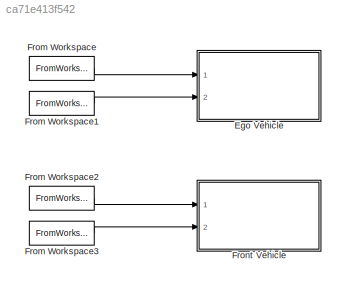
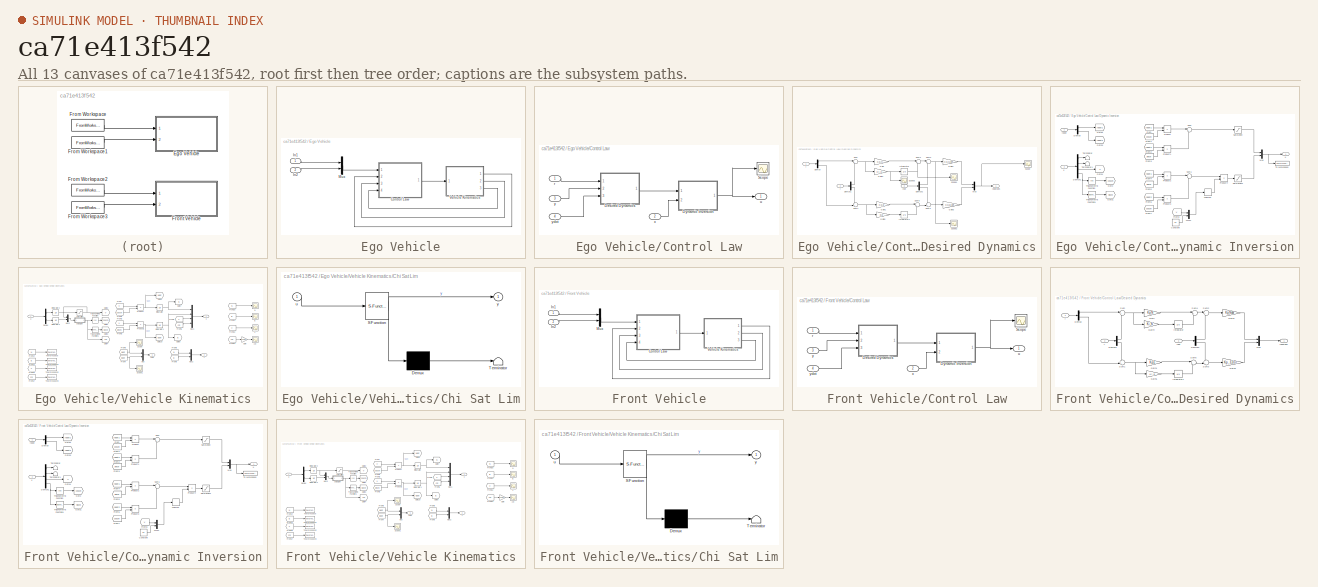
[diagram: thumbnail index - all 13 canvases of the model, root first then tree order]
MODEL slx_ca71e413f542
KIND model
CONFIG AbsTol = auto
CONFIG EnableMultiTasking = off
CONFIG FixedStep = dt
CONFIG MaxStep = auto
CONFIG MinStep = auto
CONFIG RelTol = 1e-3
CONFIG SampleTimeConstraint = Unconstrained
CONFIG Solver = ode1
CONFIG SolverName = ode1
CONFIG StartTime = t_start
CONFIG StopTime = t_stop
BLOCK [SubSystem] Ego Vehicle
  Ports = [2]
  RequestExecContextInheritance = off
BLOCK [SubSystem] Ego Vehicle/Control Law
  Ports = [4, 1]
  RequestExecContextInheritance = off
BLOCK [SubSystem] Ego Vehicle/Control Law/Desired Dynamics
  Ports = [3, 1]
  RequestExecContextInheritance = off
BLOCK [Demux] Ego Vehicle/Control Law/Desired Dynamics/Demux
  DisplayOption = bar
  Outputs = 2
  Ports = [1, 2]
BLOCK [Demux] Ego Vehicle/Control Law/Desired Dynamics/Demux1
  DisplayOption = bar
  Outputs = 2
  Ports = [1, 2]
BLOCK [Demux] Ego Vehicle/Control Law/Desired Dynamics/Demux2
  DisplayOption = bar
  Outputs = 2
  Ports = [1, 2]
BLOCK [Gain] Ego Vehicle/Control Law/Desired Dynamics/Gain
  Gain = Kp_N
  OutDataTypeStr = Inherit: Inherit via internal rule
  ParamDataTypeStr = Inherit: Inherit via internal rule
  SaturateOnIntegerOverflow = off
BLOCK [Gain] Ego Vehicle/Control Law/Desired Dynamics/Gain1
  Gain = Kp_E
  OutDataTypeStr = Inherit: Inherit via internal rule
  ParamDataTypeStr = Inherit: Inherit via internal rule
  SaturateOnIntegerOverflow = off
BLOCK [Gain] Ego Vehicle/Control Law/Desired Dynamics/Gain2
  Gain = Kp_Ndot
  OutDataTypeStr = Inherit: Inherit via internal rule
  ParamDataTypeStr = Inherit: Inherit via internal rule
  SaturateOnIntegerOverflow = off
BLOCK [Gain] Ego Vehicle/Control Law/Desired Dynamics/Gain3
  Gain = Kp_Edot
  OutDataTypeStr = Inherit: Inherit via internal rule
  ParamDataTypeStr = Inherit: Inherit via internal rule
  SaturateOnIntegerOverflow = off
BLOCK [Gain] Ego Vehicle/Control Law/Desired Dynamics/Gain4
  Gain = Ki_N
  OutDataTypeStr = Inherit: Inherit via internal rule
  ParamDataTypeStr = Inherit: Inherit via internal rule
  SaturateOnIntegerOverflow = off
BLOCK [Gain] Ego Vehicle/Control Law/Desired Dynamics/Gain5
  Gain = Ki_E
  OutDataTypeStr = Inherit: Inherit via internal rule
  ParamDataTypeStr = Inherit: Inherit via internal rule
  SaturateOnIntegerOverflow = off
BLOCK [Integrator] Ego Vehicle/Control Law/Desired Dynamics/Integrator
  InitialCondition = intg_Ki_N
  Ports = [1, 1]
BLOCK [Integrator] Ego Vehicle/Control Law/Desired Dynamics/Integrator1
  InitialCondition = intg_Ki_E
  Ports = [1, 1]
BLOCK [Mux] Ego Vehicle/Control Law/Desired Dynamics/Mux
  DisplayOption = bar
  Inputs = 2
  Ports = [2, 1]
BLOCK [Scope] Ego Vehicle/Control Law/Desired Dynamics/Scope
  Floating = off
  NumInputPorts = 1
  Ports = [1]
  ScopeSpecificationString = Simulink.scopes.TimeScopeBlockCfg('CurrentConfiguration', extmgr.ConfigurationSet(extmgr.Configuration('Core','General UI',true),extmgr.Configuration('Core','Source UI',true),extmgr.Configuration('Sources','WiredSimulink',true,'DataLoggingVariableName','ScopeData4'),extmgr.Configuration('Visuals','Time Domain',true,'SerializedDisplays',{struct('MinYLimReal','-98.72888','MaxYLimReal','10.96988','YL...<+1429ch>
BLOCK [Scope] Ego Vehicle/Control Law/Desired Dynamics/Scope1
  Floating = off
  NumInputPorts = 1
  Ports = [1]
  ScopeSpecificationString = Simulink.scopes.TimeScopeBlockCfg('CurrentConfiguration', extmgr.ConfigurationSet(extmgr.Configuration('Core','General UI',true),extmgr.Configuration('Core','Source UI',true),extmgr.Configuration('Sources','WiredSimulink',true,'DataLoggingVariableName','ScopeData5'),extmgr.Configuration('Visuals','Time Domain',true,'SerializedDisplays',{struct('MinYLimReal','44.07938','MaxYLimReal','44.10229','YLa...<+1429ch>
BLOCK [Scope] Ego Vehicle/Control Law/Desired Dynamics/Scope2
  Floating = off
  NumInputPorts = 1
  Ports = [1]
  ScopeSpecificationString = Simulink.scopes.TimeScopeBlockCfg('CurrentConfiguration', extmgr.ConfigurationSet(extmgr.Configuration('Core','General UI',true),extmgr.Configuration('Core','Source UI',true),extmgr.Configuration('Sources','WiredSimulink',true,'DataLoggingVariableName','ScopeData6'),extmgr.Configuration('Visuals','Time Domain',true,'SerializedDisplays',{struct('MinYLimReal','-44.1000000000067','MaxYLimReal','-44.0...<+1489ch>
BLOCK [Scope] Ego Vehicle/Control Law/Desired Dynamics/Scope3
  Floating = off
  NumInputPorts = 1
  Ports = [1]
  ScopeSpecificationString = Simulink.scopes.TimeScopeBlockCfg('CurrentConfiguration', extmgr.ConfigurationSet(extmgr.Configuration('Core','General UI',true),extmgr.Configuration('Core','Source UI',true),extmgr.Configuration('Sources','WiredSimulink',true,'DataLoggingVariableName','ScopeData10'),extmgr.Configuration('Visuals','Time Domain',true,'SerializedDisplays',{struct('MinYLimReal','-82.2465','MaxYLimReal','744.6285','YL...<+1423ch>
BLOCK [Sum] Ego Vehicle/Control Law/Desired Dynamics/Sum
  IconShape = round
  InputSameDT = off
  Inputs = |+-
  OutDataTypeStr = Inherit: Inherit via internal rule
  Ports = [2, 1]
  SaturateOnIntegerOverflow = off
BLOCK [Sum] Ego Vehicle/Control Law/Desired Dynamics/Sum1
  IconShape = round
  InputSameDT = off
  Inputs = -+|
  OutDataTypeStr = Inherit: Inherit via internal rule
  Ports = [2, 1]
  SaturateOnIntegerOverflow = off
BLOCK [Sum] Ego Vehicle/Control Law/Desired Dynamics/Sum2
  IconShape = round
  InputSameDT = off
  Inputs = |+-
  OutDataTypeStr = Inherit: Inherit via internal rule
  Ports = [2, 1]
  SaturateOnIntegerOverflow = off
BLOCK [Sum] Ego Vehicle/Control Law/Desired Dynamics/Sum3
  IconShape = round
  InputSameDT = off
  Inputs = -+|
  OutDataTypeStr = Inherit: Inherit via internal rule
  Ports = [2, 1]
  SaturateOnIntegerOverflow = off
BLOCK [Sum] Ego Vehicle/Control Law/Desired Dynamics/Sum4
  IconShape = round
  InputSameDT = off
  Inputs = |++
  OutDataTypeStr = Inherit: Inherit via internal rule
  Ports = [2, 1]
  SaturateOnIntegerOverflow = off
BLOCK [Sum] Ego Vehicle/Control Law/Desired Dynamics/Sum5
  IconShape = round
  InputSameDT = off
  Inputs = |++
  OutDataTypeStr = Inherit: Inherit via internal rule
  Ports = [2, 1]
  SaturateOnIntegerOverflow = off
BLOCK [Inport] Ego Vehicle/Control Law/Desired Dynamics/r
  IconDisplay = Port number
BLOCK [Inport] Ego Vehicle/Control Law/Desired Dynamics/y
  IconDisplay = Port number
  Port = 2
BLOCK [Outport] Ego Vehicle/Control Law/Desired Dynamics/yddotdes
  IconDisplay = Port number
BLOCK [Inport] Ego Vehicle/Control Law/Desired Dynamics/ydot
  IconDisplay = Port number
  Port = 3
BLOCK [SubSystem] Ego Vehicle/Control Law/Dynamic Inversion
  Ports = [2, 1]
  RequestExecContextInheritance = off
BLOCK [Constant] Ego Vehicle/Control Law/Dynamic Inversion/Constant
  Value = 0.1
BLOCK [Demux] Ego Vehicle/Control Law/Dynamic Inversion/Demux
  DisplayOption = bar
  Outputs = 2
  Ports = [1, 2]
BLOCK [Demux] Ego Vehicle/Control Law/Dynamic Inversion/Demux1
  DisplayOption = bar
  Ports = [1, 4]
BLOCK [From] Ego Vehicle/Control Law/Dynamic Inversion/From
  GotoTag = yddot1
BLOCK [From] Ego Vehicle/Control Law/Dynamic Inversion/From1
  GotoTag = coschi
BLOCK [From] Ego Vehicle/Control Law/Dynamic Inversion/From2
  GotoTag = yddot2
BLOCK [From] Ego Vehicle/Control Law/Dynamic Inversion/From3
  GotoTag = sinchi
BLOCK [From] Ego Vehicle/Control Law/Dynamic Inversion/From4
  GotoTag = yddot1
BLOCK [From] Ego Vehicle/Control Law/Dynamic Inversion/From5
  GotoTag = sinchi
BLOCK [From] Ego Vehicle/Control Law/Dynamic Inversion/From6
  GotoTag = yddot2
BLOCK [From] Ego Vehicle/Control Law/Dynamic Inversion/From7
  GotoTag = coschi
BLOCK [From] Ego Vehicle/Control Law/Dynamic Inversion/From8
  GotoTag = V
BLOCK [Goto] Ego Vehicle/Control Law/Dynamic Inversion/Goto
  GotoTag = coschi
BLOCK [Goto] Ego Vehicle/Control Law/Dynamic Inversion/Goto1
  GotoTag = sinchi
BLOCK [Goto] Ego Vehicle/Control Law/Dynamic Inversion/Goto2
  GotoTag = yddot1
BLOCK [Goto] Ego Vehicle/Control Law/Dynamic Inversion/Goto3
  GotoTag = yddot2
BLOCK [Goto] Ego Vehicle/Control Law/Dynamic Inversion/Goto4
  GotoTag = V
BLOCK [MinMax] Ego Vehicle/Control Law/Dynamic Inversion/MinMax
  Function = max
  InputSameDT = off
  Ports = [1, 1]
  SaturateOnIntegerOverflow = off
BLOCK [Mux] Ego Vehicle/Control Law/Dynamic Inversion/Mux
  DisplayOption = bar
  Inputs = 2
  Ports = [2, 1]
BLOCK [Mux] Ego Vehicle/Control Law/Dynamic Inversion/Mux1
  DisplayOption = bar
  Inputs = 2
  Ports = [2, 1]
BLOCK [Product] Ego Vehicle/Control Law/Dynamic Inversion/Product
  InputSameDT = off
  OutDataTypeStr = Inherit: Inherit via internal rule
  Ports = [2, 1]
  RndMeth = Floor
  SaturateOnIntegerOverflow = off
BLOCK [Product] Ego Vehicle/Control Law/Dynamic Inversion/Product1
  InputSameDT = off
  OutDataTypeStr = Inherit: Inherit via internal rule
  Ports = [2, 1]
  RndMeth = Floor
  SaturateOnIntegerOverflow = off
BLOCK [Product] Ego Vehicle/Control Law/Dynamic Inversion/Product2
  InputSameDT = off
  OutDataTypeStr = Inherit: Inherit via internal rule
  Ports = [2, 1]
  RndMeth = Floor
  SaturateOnIntegerOverflow = off
BLOCK [Product] Ego Vehicle/Control Law/Dynamic Inversion/Product3
  InputSameDT = off
  OutDataTypeStr = Inherit: Inherit via internal rule
  Ports = [2, 1]
  RndMeth = Floor
  SaturateOnIntegerOverflow = off
BLOCK [Product] Ego Vehicle/Control Law/Dynamic Inversion/Product4
  InputSameDT = off
  Inputs = */
  OutDataTypeStr = Inherit: Inherit via internal rule
  Ports = [2, 1]
  RndMeth = Floor
  SaturateOnIntegerOverflow = off
BLOCK [Saturate] Ego Vehicle/Control Law/Dynamic Inversion/Saturation
  InputPortMap = u0
  LowerLimit = Vdot_min
  Ports = [1, 1]
  UpperLimit = Vdot_max
BLOCK [Saturate] Ego Vehicle/Control Law/Dynamic Inversion/Saturation1
  InputPortMap = u0
  LowerLimit = chidot_min
  Ports = [1, 1]
  UpperLimit = chidot_max
BLOCK [Sum] Ego Vehicle/Control Law/Dynamic Inversion/Sum
  IconShape = round
  InputSameDT = off
  Inputs = |++
  OutDataTypeStr = Inherit: Inherit via internal rule
  Ports = [2, 1]
  SaturateOnIntegerOverflow = off
BLOCK [Sum] Ego Vehicle/Control Law/Dynamic Inversion/Sum1
  IconShape = round
  InputSameDT = off
  Inputs = |-+
  OutDataTypeStr = Inherit: Inherit via internal rule
  Ports = [2, 1]
  SaturateOnIntegerOverflow = off
BLOCK [Terminator] Ego Vehicle/Control Law/Dynamic Inversion/Terminator
BLOCK [Terminator] Ego Vehicle/Control Law/Dynamic Inversion/Terminator1
BLOCK [ToWorkspace] Ego Vehicle/Control Law/Dynamic Inversion/To Workspace
  FixptAsFi = on
  MaxDataPoints = inf
  Ports = [1]
  SampleTime = -1
  Save2DSignal = 3-D array (concatenate along third dimension)
  VariableName = u_sim
BLOCK [Trigonometry] Ego Vehicle/Control Law/Dynamic Inversion/Trigonometric Function
  Operator = cos
  Ports = [1, 1]
BLOCK [Trigonometry] Ego Vehicle/Control Law/Dynamic Inversion/Trigonometric Function1
  Ports = [1, 1]
BLOCK [Outport] Ego Vehicle/Control Law/Dynamic Inversion/u
  IconDisplay = Port number
BLOCK [Inport] Ego Vehicle/Control Law/Dynamic Inversion/x
  IconDisplay = Port number
  Port = 2
BLOCK [Inport] Ego Vehicle/Control Law/Dynamic Inversion/yddot
  IconDisplay = Port number
BLOCK [Scope] Ego Vehicle/Control Law/Scope
  Floating = off
  NumInputPorts = 1
  Ports = [1]
  ScopeSpecificationString = Simulink.scopes.TimeScopeBlockCfg('CurrentConfiguration', extmgr.ConfigurationSet(extmgr.Configuration('Core','General UI',true),extmgr.Configuration('Core','Source UI',true),extmgr.Configuration('Sources','WiredSimulink',true,'DataLoggingVariableName','ScopeData9'),extmgr.Configuration('Visuals','Time Domain',true,'SerializedDisplays',{struct('MinYLimReal','-13.96941','MaxYLimReal','6.2335','YLab...<+1402ch>
BLOCK [Inport] Ego Vehicle/Control Law/r
  IconDisplay = Port number
BLOCK [Outport] Ego Vehicle/Control Law/u
  IconDisplay = Port number
BLOCK [Inport] Ego Vehicle/Control Law/x
  IconDisplay = Port number
  Port = 2
BLOCK [Inport] Ego Vehicle/Control Law/y
  IconDisplay = Port number
  Port = 3
BLOCK [Inport] Ego Vehicle/Control Law/ydot
  IconDisplay = Port number
  Port = 4
BLOCK [Inport] Ego Vehicle/In1
  IconDisplay = Port number
BLOCK [Inport] Ego Vehicle/In2
  IconDisplay = Port number
  Port = 2
BLOCK [Mux] Ego Vehicle/Mux
  DisplayOption = bar
  Inputs = 2
  Ports = [2, 1]
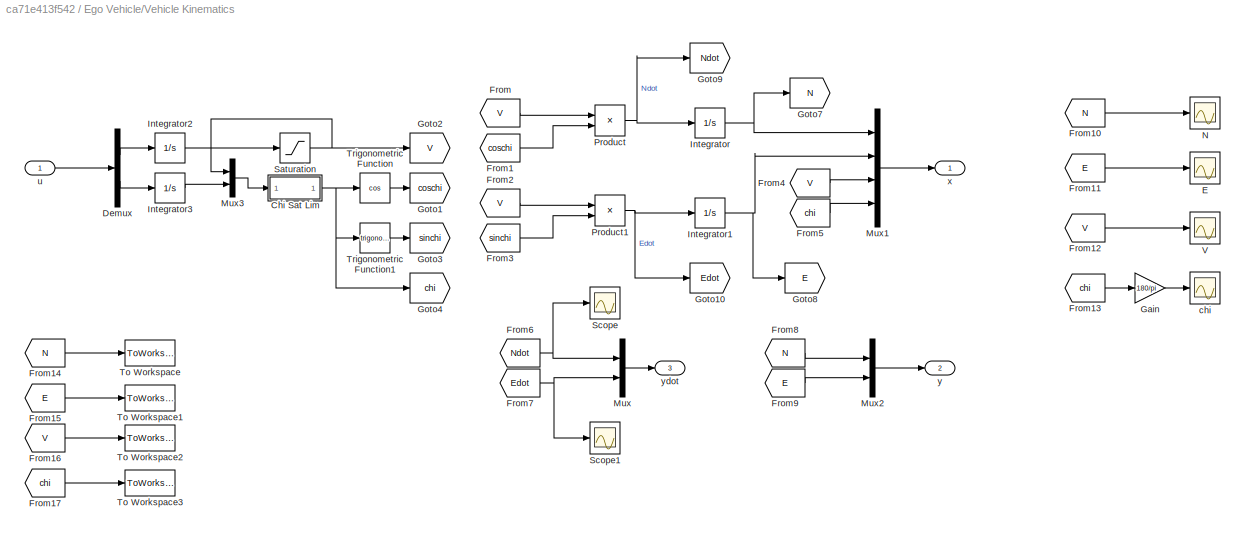
BLOCK [SubSystem] Ego Vehicle/Vehicle Kinematics
  Ports = [1, 3]
  RequestExecContextInheritance = off
BLOCK [SubSystem] Ego Vehicle/Vehicle Kinematics/Chi Sat Lim
  ErrorFcn = Stateflow.Translate.translate
  PermitHierarchicalResolution = ExplicitOnly
  Ports = [1, 1]
  RequestExecContextInheritance = off
  SFBlockType = MATLAB Function
  TreatAsAtomicUnit = on
BLOCK [Demux] Ego Vehicle/Vehicle Kinematics/Chi Sat Lim/ Demux 
  Outputs = 1
  Ports = [1, 1]
BLOCK [S-Function] Ego Vehicle/Vehicle Kinematics/Chi Sat Lim/ SFunction 
  EnableBusSupport = on
  FunctionName = sf_sfun
  PortCounts = [1 2]
  Ports = [1, 2]
  SFcnIsStateOwnerBlock = off
  SFunctionDeploymentMode = off
  Tag = Stateflow S-Function nonlinsim 2
BLOCK [Terminator] Ego Vehicle/Vehicle Kinematics/Chi Sat Lim/ Terminator 
BLOCK [Inport] Ego Vehicle/Vehicle Kinematics/Chi Sat Lim/u
  IconDisplay = Port number
BLOCK [Outport] Ego Vehicle/Vehicle Kinematics/Chi Sat Lim/y
  IconDisplay = Port number
BLOCK [Demux] Ego Vehicle/Vehicle Kinematics/Demux
  DisplayOption = bar
  Outputs = 2
  Ports = [1, 2]
BLOCK [Scope] Ego Vehicle/Vehicle Kinematics/E
  Floating = off
  NumInputPorts = 1
  Ports = [1]
  ScopeSpecificationString = Simulink.scopes.TimeScopeBlockCfg('CurrentConfiguration', extmgr.ConfigurationSet(extmgr.Configuration('Core','General UI',true),extmgr.Configuration('Core','Source UI',true),extmgr.Configuration('Sources','WiredSimulink',true,'DataLoggingVariableName','ScopeData1'),extmgr.Configuration('Visuals','Time Domain',true,'SerializedDisplays',{struct('MinYLimReal','-3.05329','MaxYLimReal','27.47965','YLa...<+1406ch>
BLOCK [From] Ego Vehicle/Vehicle Kinematics/From
  GotoTag = V
BLOCK [From] Ego Vehicle/Vehicle Kinematics/From1
  GotoTag = coschi
BLOCK [From] Ego Vehicle/Vehicle Kinematics/From10
  GotoTag = N
BLOCK [From] Ego Vehicle/Vehicle Kinematics/From11
  GotoTag = E
BLOCK [From] Ego Vehicle/Vehicle Kinematics/From12
  GotoTag = V
BLOCK [From] Ego Vehicle/Vehicle Kinematics/From13
  GotoTag = chi
BLOCK [From] Ego Vehicle/Vehicle Kinematics/From14
  GotoTag = N
BLOCK [From] Ego Vehicle/Vehicle Kinematics/From15
  GotoTag = E
BLOCK [From] Ego Vehicle/Vehicle Kinematics/From16
  GotoTag = V
BLOCK [From] Ego Vehicle/Vehicle Kinematics/From17
  GotoTag = chi
BLOCK [From] Ego Vehicle/Vehicle Kinematics/From2
  GotoTag = V
BLOCK [From] Ego Vehicle/Vehicle Kinematics/From3
  GotoTag = sinchi
BLOCK [From] Ego Vehicle/Vehicle Kinematics/From4
  GotoTag = V
BLOCK [From] Ego Vehicle/Vehicle Kinematics/From5
  GotoTag = chi
BLOCK [From] Ego Vehicle/Vehicle Kinematics/From6
  GotoTag = Ndot
BLOCK [From] Ego Vehicle/Vehicle Kinematics/From7
  GotoTag = Edot
BLOCK [From] Ego Vehicle/Vehicle Kinematics/From8
  GotoTag = N
BLOCK [From] Ego Vehicle/Vehicle Kinematics/From9
  GotoTag = E
BLOCK [Gain] Ego Vehicle/Vehicle Kinematics/Gain
  Gain = 180/pi
  OutDataTypeStr = Inherit: Inherit via internal rule
  ParamDataTypeStr = Inherit: Inherit via internal rule
  SaturateOnIntegerOverflow = off
BLOCK [Goto] Ego Vehicle/Vehicle Kinematics/Goto1
  GotoTag = coschi
BLOCK [Goto] Ego Vehicle/Vehicle Kinematics/Goto10
  GotoTag = Edot
BLOCK [Goto] Ego Vehicle/Vehicle Kinematics/Goto2
  GotoTag = V
BLOCK [Goto] Ego Vehicle/Vehicle Kinematics/Goto3
  GotoTag = sinchi
BLOCK [Goto] Ego Vehicle/Vehicle Kinematics/Goto4
  GotoTag = chi
BLOCK [Goto] Ego Vehicle/Vehicle Kinematics/Goto7
  GotoTag = N
BLOCK [Goto] Ego Vehicle/Vehicle Kinematics/Goto8
  GotoTag = E
BLOCK [Goto] Ego Vehicle/Vehicle Kinematics/Goto9
  GotoTag = Ndot
BLOCK [Integrator] Ego Vehicle/Vehicle Kinematics/Integrator
  InitialCondition = N0
  Ports = [1, 1]
BLOCK [Integrator] Ego Vehicle/Vehicle Kinematics/Integrator1
  InitialCondition = E0
  Ports = [1, 1]
BLOCK [Integrator] Ego Vehicle/Vehicle Kinematics/Integrator2
  InitialCondition = V0
  Ports = [1, 1]
BLOCK [Integrator] Ego Vehicle/Vehicle Kinematics/Integrator3
  InitialCondition = chi0
  Ports = [1, 1]
BLOCK [Mux] Ego Vehicle/Vehicle Kinematics/Mux
  DisplayOption = bar
  Inputs = 2
  Ports = [2, 1]
BLOCK [Mux] Ego Vehicle/Vehicle Kinematics/Mux1
  DisplayOption = bar
  Ports = [4, 1]
BLOCK [Mux] Ego Vehicle/Vehicle Kinematics/Mux2
  DisplayOption = bar
  Inputs = 2
  Ports = [2, 1]
BLOCK [Mux] Ego Vehicle/Vehicle Kinematics/Mux3
  DisplayOption = bar
  Inputs = 2
  Ports = [2, 1]
BLOCK [Scope] Ego Vehicle/Vehicle Kinematics/N
  Floating = off
  NumInputPorts = 1
  Ports = [1]
  ScopeSpecificationString = Simulink.scopes.TimeScopeBlockCfg('CurrentConfiguration', extmgr.ConfigurationSet(extmgr.Configuration('Core','General UI',true),extmgr.Configuration('Core','Source UI',true),extmgr.Configuration('Sources','WiredSimulink',true),extmgr.Configuration('Visuals','Time Domain',true,'SerializedDisplays',{struct('MinYLimReal','-77.04857','MaxYLimReal','693.43714','YLabelReal','','MinYLimMag','0.00000','M...<+1394ch>
BLOCK [Product] Ego Vehicle/Vehicle Kinematics/Product
  InputSameDT = off
  OutDataTypeStr = Inherit: Inherit via internal rule
  Ports = [2, 1]
  RndMeth = Floor
  SaturateOnIntegerOverflow = off
BLOCK [Product] Ego Vehicle/Vehicle Kinematics/Product1
  InputSameDT = off
  OutDataTypeStr = Inherit: Inherit via internal rule
  Ports = [2, 1]
  RndMeth = Floor
  SaturateOnIntegerOverflow = off
BLOCK [Saturate] Ego Vehicle/Vehicle Kinematics/Saturation
  InputPortMap = u0
  LowerLimit = V_min
  Ports = [1, 1]
  UpperLimit = V_max
BLOCK [Scope] Ego Vehicle/Vehicle Kinematics/Scope
  Floating = off
  NumInputPorts = 1
  Ports = [1]
  ScopeSpecificationString = Simulink.scopes.TimeScopeBlockCfg('CurrentConfiguration', extmgr.ConfigurationSet(extmgr.Configuration('Core','General UI',true),extmgr.Configuration('Core','Source UI',true),extmgr.Configuration('Sources','WiredSimulink',true,'DataLoggingVariableName','ScopeData7'),extmgr.Configuration('Visuals','Time Domain',true,'SerializedDisplays',{struct('MinYLimReal','34.1','MaxYLimReal','54.1','YLabelReal'...<+1358ch>
BLOCK [Scope] Ego Vehicle/Vehicle Kinematics/Scope1
  Floating = off
  NumInputPorts = 1
  Ports = [1]
  ScopeSpecificationString = Simulink.scopes.TimeScopeBlockCfg('CurrentConfiguration', extmgr.ConfigurationSet(extmgr.Configuration('Core','General UI',true),extmgr.Configuration('Core','Source UI',true),extmgr.Configuration('Sources','WiredSimulink',true,'DataLoggingVariableName','ScopeData8'),extmgr.Configuration('Visuals','Time Domain',true,'SerializedDisplays',{struct('MinYLimReal','-2.33788','MaxYLimReal','18.13728','YLa...<+1369ch>
BLOCK [ToWorkspace] Ego Vehicle/Vehicle Kinematics/To Workspace
  FixptAsFi = on
  MaxDataPoints = inf
  Ports = [1]
  SampleTime = -1
  Save2DSignal = 3-D array (concatenate along third dimension)
  VariableName = N_sim
BLOCK [ToWorkspace] Ego Vehicle/Vehicle Kinematics/To Workspace1
  FixptAsFi = on
  MaxDataPoints = inf
  Ports = [1]
  SampleTime = -1
  Save2DSignal = 3-D array (concatenate along third dimension)
  VariableName = E_sim
BLOCK [ToWorkspace] Ego Vehicle/Vehicle Kinematics/To Workspace2
  FixptAsFi = on
  MaxDataPoints = inf
  Ports = [1]
  SampleTime = -1
  Save2DSignal = 3-D array (concatenate along third dimension)
  VariableName = V_sim
BLOCK [ToWorkspace] Ego Vehicle/Vehicle Kinematics/To Workspace3
  FixptAsFi = on
  MaxDataPoints = inf
  Ports = [1]
  SampleTime = -1
  Save2DSignal = 3-D array (concatenate along third dimension)
  VariableName = chi_sim
BLOCK [Trigonometry] Ego Vehicle/Vehicle Kinematics/Trigonometric Function
  Operator = cos
  Ports = [1, 1]
BLOCK [Trigonometry] Ego Vehicle/Vehicle Kinematics/Trigonometric Function1
  Ports = [1, 1]
BLOCK [Scope] Ego Vehicle/Vehicle Kinematics/V
  Floating = off
  NumInputPorts = 1
  Ports = [1]
  ScopeSpecificationString = Simulink.scopes.TimeScopeBlockCfg('CurrentConfiguration', extmgr.ConfigurationSet(extmgr.Configuration('Core','General UI',true),extmgr.Configuration('Core','Source UI',true),extmgr.Configuration('Sources','WiredSimulink',true,'DataLoggingVariableName','ScopeData2'),extmgr.Configuration('Visuals','Time Domain',true,'SerializedDisplays',{struct('MinYLimReal','-7.92362','MaxYLimReal','68.20358','YLa...<+1450ch>
BLOCK [Scope] Ego Vehicle/Vehicle Kinematics/chi
  Floating = off
  NumInputPorts = 1
  Ports = [1]
  ScopeSpecificationString = Simulink.scopes.TimeScopeBlockCfg('CurrentConfiguration', extmgr.ConfigurationSet(extmgr.Configuration('Core','General UI',true),extmgr.Configuration('Core','Source UI',true),extmgr.Configuration('Sources','WiredSimulink',true,'DataLoggingVariableName','ScopeData3'),extmgr.Configuration('Visuals','Time Domain',true,'SerializedDisplays',{struct('MinYLimReal','-2.24322','MaxYLimReal','17.36005','YLa...<+1429ch>
BLOCK [Inport] Ego Vehicle/Vehicle Kinematics/u
  IconDisplay = Port number
BLOCK [Outport] Ego Vehicle/Vehicle Kinematics/x
  IconDisplay = Port number
BLOCK [Outport] Ego Vehicle/Vehicle Kinematics/y
  IconDisplay = Port number
  Port = 2
BLOCK [Outport] Ego Vehicle/Vehicle Kinematics/ydot
  IconDisplay = Port number
  Port = 3
BLOCK [FromWorkspace] From Workspace
  SampleTime = 0
  VariableName = [tvec Nc]
  ZeroCross = on
BLOCK [FromWorkspace] From Workspace1
  SampleTime = 0
  VariableName = [tvec Ec]
  ZeroCross = on
BLOCK [FromWorkspace] From Workspace2
  SampleTime = 0
  VariableName = [tvec Nc1]
  ZeroCross = on
BLOCK [FromWorkspace] From Workspace3
  SampleTime = 0
  VariableName = [tvec Ec1]
  ZeroCross = on
BLOCK [SubSystem] Front Vehicle
  Ports = [2]
  RequestExecContextInheritance = off
BLOCK [SubSystem] Front Vehicle/Control Law
  Ports = [4, 1]
  RequestExecContextInheritance = off
BLOCK [SubSystem] Front Vehicle/Control Law/Desired Dynamics
  Ports = [3, 1]
  RequestExecContextInheritance = off
BLOCK [Demux] Front Vehicle/Control Law/Desired Dynamics/Demux
  DisplayOption = bar
  Outputs = 2
  Ports = [1, 2]
BLOCK [Demux] Front Vehicle/Control Law/Desired Dynamics/Demux1
  DisplayOption = bar
  Outputs = 2
  Ports = [1, 2]
BLOCK [Demux] Front Vehicle/Control Law/Desired Dynamics/Demux2
  DisplayOption = bar
  Outputs = 2
  Ports = [1, 2]
BLOCK [Gain] Front Vehicle/Control Law/Desired Dynamics/Gain
  Gain = Kp_N
  OutDataTypeStr = Inherit: Inherit via internal rule
  ParamDataTypeStr = Inherit: Inherit via internal rule
  SaturateOnIntegerOverflow = off
BLOCK [Gain] Front Vehicle/Control Law/Desired Dynamics/Gain1
  Gain = Kp_E
  OutDataTypeStr = Inherit: Inherit via internal rule
  ParamDataTypeStr = Inherit: Inherit via internal rule
  SaturateOnIntegerOverflow = off
BLOCK [Gain] Front Vehicle/Control Law/Desired Dynamics/Gain2
  Gain = Kp_Ndot
  OutDataTypeStr = Inherit: Inherit via internal rule
  ParamDataTypeStr = Inherit: Inherit via internal rule
  SaturateOnIntegerOverflow = off
BLOCK [Gain] Front Vehicle/Control Law/Desired Dynamics/Gain3
  Gain = Kp_Edot
  OutDataTypeStr = Inherit: Inherit via internal rule
  ParamDataTypeStr = Inherit: Inherit via internal rule
  SaturateOnIntegerOverflow = off
BLOCK [Gain] Front Vehicle/Control Law/Desired Dynamics/Gain4
  Gain = Ki_N
  OutDataTypeStr = Inherit: Inherit via internal rule
  ParamDataTypeStr = Inherit: Inherit via internal rule
  SaturateOnIntegerOverflow = off
BLOCK [Gain] Front Vehicle/Control Law/Desired Dynamics/Gain5
  Gain = Ki_E
  OutDataTypeStr = Inherit: Inherit via internal rule
  ParamDataTypeStr = Inherit: Inherit via internal rule
  SaturateOnIntegerOverflow = off
BLOCK [Integrator] Front Vehicle/Control Law/Desired Dynamics/Integrator
  InitialCondition = intg_Ki_N1
  Ports = [1, 1]
BLOCK [Integrator] Front Vehicle/Control Law/Desired Dynamics/Integrator1
  InitialCondition = intg_Ki_E1
  Ports = [1, 1]
BLOCK [Mux] Front Vehicle/Control Law/Desired Dynamics/Mux
  DisplayOption = bar
  Inputs = 2
  Ports = [2, 1]
BLOCK [Sum] Front Vehicle/Control Law/Desired Dynamics/Sum
  IconShape = round
  InputSameDT = off
  Inputs = |+-
  OutDataTypeStr = Inherit: Inherit via internal rule
  Ports = [2, 1]
  SaturateOnIntegerOverflow = off
BLOCK [Sum] Front Vehicle/Control Law/Desired Dynamics/Sum1
  IconShape = round
  InputSameDT = off
  Inputs = -+|
  OutDataTypeStr = Inherit: Inherit via internal rule
  Ports = [2, 1]
  SaturateOnIntegerOverflow = off
BLOCK [Sum] Front Vehicle/Control Law/Desired Dynamics/Sum2
  IconShape = round
  InputSameDT = off
  Inputs = |+-
  OutDataTypeStr = Inherit: Inherit via internal rule
  Ports = [2, 1]
  SaturateOnIntegerOverflow = off
BLOCK [Sum] Front Vehicle/Control Law/Desired Dynamics/Sum3
  IconShape = round
  InputSameDT = off
  Inputs = -+|
  OutDataTypeStr = Inherit: Inherit via internal rule
  Ports = [2, 1]
  SaturateOnIntegerOverflow = off
BLOCK [Sum] Front Vehicle/Control Law/Desired Dynamics/Sum4
  IconShape = round
  InputSameDT = off
  Inputs = |++
  OutDataTypeStr = Inherit: Inherit via internal rule
  Ports = [2, 1]
  SaturateOnIntegerOverflow = off
BLOCK [Sum] Front Vehicle/Control Law/Desired Dynamics/Sum5
  IconShape = round
  InputSameDT = off
  Inputs = |++
  OutDataTypeStr = Inherit: Inherit via internal rule
  Ports = [2, 1]
  SaturateOnIntegerOverflow = off
BLOCK [Inport] Front Vehicle/Control Law/Desired Dynamics/r
  IconDisplay = Port number
BLOCK [Inport] Front Vehicle/Control Law/Desired Dynamics/y
  IconDisplay = Port number
  Port = 2
BLOCK [Outport] Front Vehicle/Control Law/Desired Dynamics/yddotdes
  IconDisplay = Port number
BLOCK [Inport] Front Vehicle/Control Law/Desired Dynamics/ydot
  IconDisplay = Port number
  Port = 3
BLOCK [SubSystem] Front Vehicle/Control Law/Dynamic Inversion
  Ports = [2, 1]
  RequestExecContextInheritance = off
BLOCK [Constant] Front Vehicle/Control Law/Dynamic Inversion/Constant
  Value = 0.1
BLOCK [Demux] Front Vehicle/Control Law/Dynamic Inversion/Demux
  DisplayOption = bar
  Outputs = 2
  Ports = [1, 2]
BLOCK [Demux] Front Vehicle/Control Law/Dynamic Inversion/Demux1
  DisplayOption = bar
  Ports = [1, 4]
BLOCK [From] Front Vehicle/Control Law/Dynamic Inversion/From
  GotoTag = yddot1
BLOCK [From] Front Vehicle/Control Law/Dynamic Inversion/From1
  GotoTag = coschi
BLOCK [From] Front Vehicle/Control Law/Dynamic Inversion/From2
  GotoTag = yddot2
BLOCK [From] Front Vehicle/Control Law/Dynamic Inversion/From3
  GotoTag = sinchi
BLOCK [From] Front Vehicle/Control Law/Dynamic Inversion/From4
  GotoTag = yddot1
BLOCK [From] Front Vehicle/Control Law/Dynamic Inversion/From5
  GotoTag = sinchi
BLOCK [From] Front Vehicle/Control Law/Dynamic Inversion/From6
  GotoTag = yddot2
BLOCK [From] Front Vehicle/Control Law/Dynamic Inversion/From7
  GotoTag = coschi
BLOCK [From] Front Vehicle/Control Law/Dynamic Inversion/From8
  GotoTag = V
BLOCK [Goto] Front Vehicle/Control Law/Dynamic Inversion/Goto
  GotoTag = coschi
BLOCK [Goto] Front Vehicle/Control Law/Dynamic Inversion/Goto1
  GotoTag = sinchi
BLOCK [Goto] Front Vehicle/Control Law/Dynamic Inversion/Goto2
  GotoTag = yddot1
BLOCK [Goto] Front Vehicle/Control Law/Dynamic Inversion/Goto3
  GotoTag = yddot2
BLOCK [Goto] Front Vehicle/Control Law/Dynamic Inversion/Goto4
  GotoTag = V
BLOCK [MinMax] Front Vehicle/Control Law/Dynamic Inversion/MinMax
  Function = max
  InputSameDT = off
  Ports = [1, 1]
  SaturateOnIntegerOverflow = off
BLOCK [Mux] Front Vehicle/Control Law/Dynamic Inversion/Mux
  DisplayOption = bar
  Inputs = 2
  Ports = [2, 1]
BLOCK [Mux] Front Vehicle/Control Law/Dynamic Inversion/Mux1
  DisplayOption = bar
  Inputs = 2
  Ports = [2, 1]
BLOCK [Product] Front Vehicle/Control Law/Dynamic Inversion/Product
  InputSameDT = off
  OutDataTypeStr = Inherit: Inherit via internal rule
  Ports = [2, 1]
  RndMeth = Floor
  SaturateOnIntegerOverflow = off
BLOCK [Product] Front Vehicle/Control Law/Dynamic Inversion/Product1
  InputSameDT = off
  OutDataTypeStr = Inherit: Inherit via internal rule
  Ports = [2, 1]
  RndMeth = Floor
  SaturateOnIntegerOverflow = off
BLOCK [Product] Front Vehicle/Control Law/Dynamic Inversion/Product2
  InputSameDT = off
  OutDataTypeStr = Inherit: Inherit via internal rule
  Ports = [2, 1]
  RndMeth = Floor
  SaturateOnIntegerOverflow = off
BLOCK [Product] Front Vehicle/Control Law/Dynamic Inversion/Product3
  InputSameDT = off
  OutDataTypeStr = Inherit: Inherit via internal rule
  Ports = [2, 1]
  RndMeth = Floor
  SaturateOnIntegerOverflow = off
BLOCK [Product] Front Vehicle/Control Law/Dynamic Inversion/Product4
  InputSameDT = off
  Inputs = */
  OutDataTypeStr = Inherit: Inherit via internal rule
  Ports = [2, 1]
  RndMeth = Floor
  SaturateOnIntegerOverflow = off
BLOCK [Saturate] Front Vehicle/Control Law/Dynamic Inversion/Saturation
  InputPortMap = u0
  LowerLimit = Vdot_min
  Ports = [1, 1]
  UpperLimit = Vdot_max
BLOCK [Saturate] Front Vehicle/Control Law/Dynamic Inversion/Saturation1
  InputPortMap = u0
  LowerLimit = chidot_min
  Ports = [1, 1]
  UpperLimit = chidot_max
BLOCK [Sum] Front Vehicle/Control Law/Dynamic Inversion/Sum
  IconShape = round
  InputSameDT = off
  Inputs = |++
  OutDataTypeStr = Inherit: Inherit via internal rule
  Ports = [2, 1]
  SaturateOnIntegerOverflow = off
BLOCK [Sum] Front Vehicle/Control Law/Dynamic Inversion/Sum1
  IconShape = round
  InputSameDT = off
  Inputs = |-+
  OutDataTypeStr = Inherit: Inherit via internal rule
  Ports = [2, 1]
  SaturateOnIntegerOverflow = off
BLOCK [Terminator] Front Vehicle/Control Law/Dynamic Inversion/Terminator
BLOCK [Terminator] Front Vehicle/Control Law/Dynamic Inversion/Terminator1
BLOCK [ToWorkspace] Front Vehicle/Control Law/Dynamic Inversion/To Workspace
  FixptAsFi = on
  MaxDataPoints = inf
  Ports = [1]
  SampleTime = -1
  Save2DSignal = 3-D array (concatenate along third dimension)
  VariableName = u1_sim
BLOCK [Trigonometry] Front Vehicle/Control Law/Dynamic Inversion/Trigonometric Function
  Operator = cos
  Ports = [1, 1]
BLOCK [Trigonometry] Front Vehicle/Control Law/Dynamic Inversion/Trigonometric Function1
  Ports = [1, 1]
BLOCK [Outport] Front Vehicle/Control Law/Dynamic Inversion/u
  IconDisplay = Port number
BLOCK [Inport] Front Vehicle/Control Law/Dynamic Inversion/x
  IconDisplay = Port number
  Port = 2
BLOCK [Inport] Front Vehicle/Control Law/Dynamic Inversion/yddot
  IconDisplay = Port number
BLOCK [Scope] Front Vehicle/Control Law/Scope
  Floating = off
  NumInputPorts = 1
  Ports = [1]
  ScopeSpecificationString = Simulink.scopes.TimeScopeBlockCfg('CurrentConfiguration', extmgr.ConfigurationSet(extmgr.Configuration('Core','General UI',true),extmgr.Configuration('Core','Source UI',true),extmgr.Configuration('Sources','WiredSimulink',true,'DataLoggingVariableName','ScopeData9'),extmgr.Configuration('Visuals','Time Domain',true,'SerializedDisplays',{struct('MinYLimReal','-3.73339','MaxYLimReal','5.91244','YLab...<+1400ch>
BLOCK [Inport] Front Vehicle/Control Law/r
  IconDisplay = Port number
BLOCK [Outport] Front Vehicle/Control Law/u
  IconDisplay = Port number
BLOCK [Inport] Front Vehicle/Control Law/x
  IconDisplay = Port number
  Port = 2
BLOCK [Inport] Front Vehicle/Control Law/y
  IconDisplay = Port number
  Port = 3
BLOCK [Inport] Front Vehicle/Control Law/ydot
  IconDisplay = Port number
  Port = 4
BLOCK [Inport] Front Vehicle/In1
  IconDisplay = Port number
BLOCK [Inport] Front Vehicle/In2
  IconDisplay = Port number
  Port = 2
BLOCK [Mux] Front Vehicle/Mux
  DisplayOption = bar
  Inputs = 2
  Ports = [2, 1]
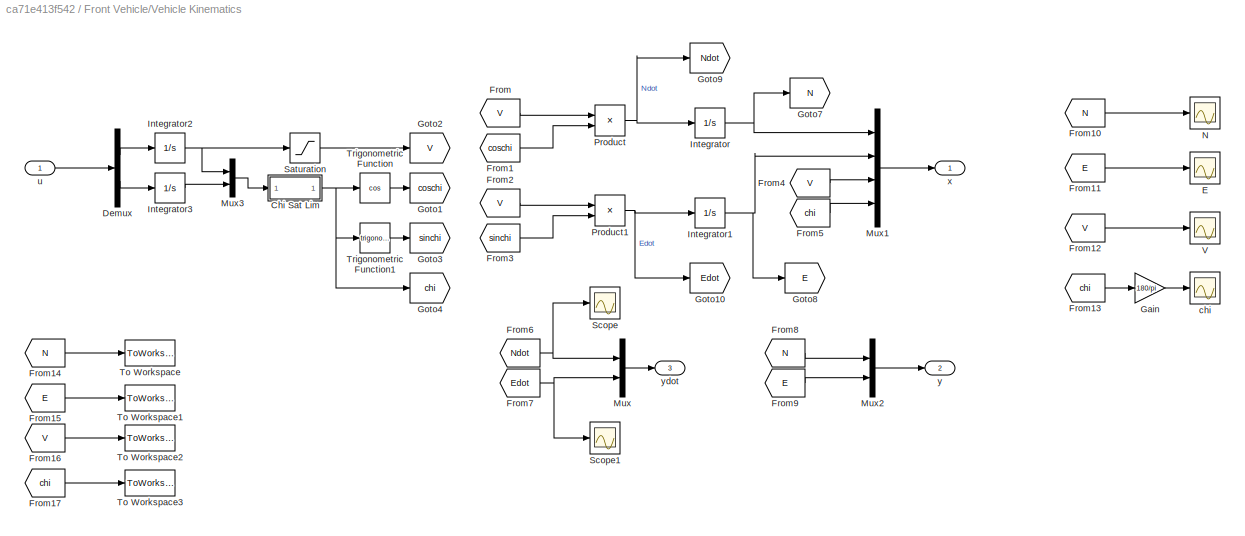
BLOCK [SubSystem] Front Vehicle/Vehicle Kinematics
  Ports = [1, 3]
  RequestExecContextInheritance = off
BLOCK [SubSystem] Front Vehicle/Vehicle Kinematics/Chi Sat Lim
  ErrorFcn = Stateflow.Translate.translate
  PermitHierarchicalResolution = ExplicitOnly
  Ports = [1, 1]
  RequestExecContextInheritance = off
  SFBlockType = MATLAB Function
  TreatAsAtomicUnit = on
BLOCK [Demux] Front Vehicle/Vehicle Kinematics/Chi Sat Lim/ Demux 
  Outputs = 1
  Ports = [1, 1]
BLOCK [S-Function] Front Vehicle/Vehicle Kinematics/Chi Sat Lim/ SFunction 
  EnableBusSupport = on
  FunctionName = sf_sfun
  PortCounts = [1 2]
  Ports = [1, 2]
  SFcnIsStateOwnerBlock = off
  SFunctionDeploymentMode = off
  Tag = Stateflow S-Function nonlinsim 1
BLOCK [Terminator] Front Vehicle/Vehicle Kinematics/Chi Sat Lim/ Terminator 
BLOCK [Inport] Front Vehicle/Vehicle Kinematics/Chi Sat Lim/u
  IconDisplay = Port number
BLOCK [Outport] Front Vehicle/Vehicle Kinematics/Chi Sat Lim/y
  IconDisplay = Port number
BLOCK [Demux] Front Vehicle/Vehicle Kinematics/Demux
  DisplayOption = bar
  Outputs = 2
  Ports = [1, 2]
BLOCK [Scope] Front Vehicle/Vehicle Kinematics/E
  Floating = off
  NumInputPorts = 1
  Ports = [1]
  ScopeSpecificationString = Simulink.scopes.TimeScopeBlockCfg('CurrentConfiguration', extmgr.ConfigurationSet(extmgr.Configuration('Core','General UI',true),extmgr.Configuration('Core','Source UI',true),extmgr.Configuration('Sources','WiredSimulink',true,'DataLoggingVariableName','ScopeData1'),extmgr.Configuration('Visuals','Time Domain',true,'SerializedDisplays',{struct('MinYLimReal','-1.00000','MaxYLimReal','1.00000','YLab...<+1402ch>
BLOCK [From] Front Vehicle/Vehicle Kinematics/From
  GotoTag = V
BLOCK [From] Front Vehicle/Vehicle Kinematics/From1
  GotoTag = coschi
BLOCK [From] Front Vehicle/Vehicle Kinematics/From10
  GotoTag = N
BLOCK [From] Front Vehicle/Vehicle Kinematics/From11
  GotoTag = E
BLOCK [From] Front Vehicle/Vehicle Kinematics/From12
  GotoTag = V
BLOCK [From] Front Vehicle/Vehicle Kinematics/From13
  GotoTag = chi
BLOCK [From] Front Vehicle/Vehicle Kinematics/From14
  GotoTag = N
BLOCK [From] Front Vehicle/Vehicle Kinematics/From15
  GotoTag = E
BLOCK [From] Front Vehicle/Vehicle Kinematics/From16
  GotoTag = V
BLOCK [From] Front Vehicle/Vehicle Kinematics/From17
  GotoTag = chi
BLOCK [From] Front Vehicle/Vehicle Kinematics/From2
  GotoTag = V
BLOCK [From] Front Vehicle/Vehicle Kinematics/From3
  GotoTag = sinchi
BLOCK [From] Front Vehicle/Vehicle Kinematics/From4
  GotoTag = V
BLOCK [From] Front Vehicle/Vehicle Kinematics/From5
  GotoTag = chi
BLOCK [From] Front Vehicle/Vehicle Kinematics/From6
  GotoTag = Ndot
BLOCK [From] Front Vehicle/Vehicle Kinematics/From7
  GotoTag = Edot
BLOCK [From] Front Vehicle/Vehicle Kinematics/From8
  GotoTag = N
BLOCK [From] Front Vehicle/Vehicle Kinematics/From9
  GotoTag = E
BLOCK [Gain] Front Vehicle/Vehicle Kinematics/Gain
  Gain = 180/pi
  OutDataTypeStr = Inherit: Inherit via internal rule
  ParamDataTypeStr = Inherit: Inherit via internal rule
  SaturateOnIntegerOverflow = off
BLOCK [Goto] Front Vehicle/Vehicle Kinematics/Goto1
  GotoTag = coschi
BLOCK [Goto] Front Vehicle/Vehicle Kinematics/Goto10
  GotoTag = Edot
BLOCK [Goto] Front Vehicle/Vehicle Kinematics/Goto2
  GotoTag = V
BLOCK [Goto] Front Vehicle/Vehicle Kinematics/Goto3
  GotoTag = sinchi
BLOCK [Goto] Front Vehicle/Vehicle Kinematics/Goto4
  GotoTag = chi
BLOCK [Goto] Front Vehicle/Vehicle Kinematics/Goto7
  GotoTag = N
BLOCK [Goto] Front Vehicle/Vehicle Kinematics/Goto8
  GotoTag = E
BLOCK [Goto] Front Vehicle/Vehicle Kinematics/Goto9
  GotoTag = Ndot
BLOCK [Integrator] Front Vehicle/Vehicle Kinematics/Integrator
  InitialCondition = N01
  Ports = [1, 1]
BLOCK [Integrator] Front Vehicle/Vehicle Kinematics/Integrator1
  InitialCondition = E01
  Ports = [1, 1]
BLOCK [Integrator] Front Vehicle/Vehicle Kinematics/Integrator2
  InitialCondition = V0
  Ports = [1, 1]
BLOCK [Integrator] Front Vehicle/Vehicle Kinematics/Integrator3
  InitialCondition = chi0
  Ports = [1, 1]
BLOCK [Mux] Front Vehicle/Vehicle Kinematics/Mux
  DisplayOption = bar
  Inputs = 2
  Ports = [2, 1]
BLOCK [Mux] Front Vehicle/Vehicle Kinematics/Mux1
  DisplayOption = bar
  Ports = [4, 1]
BLOCK [Mux] Front Vehicle/Vehicle Kinematics/Mux2
  DisplayOption = bar
  Inputs = 2
  Ports = [2, 1]
BLOCK [Mux] Front Vehicle/Vehicle Kinematics/Mux3
  DisplayOption = bar
  Inputs = 2
  Ports = [2, 1]
BLOCK [Scope] Front Vehicle/Vehicle Kinematics/N
  Floating = off
  NumInputPorts = 1
  Ports = [1]
  ScopeSpecificationString = Simulink.scopes.TimeScopeBlockCfg('CurrentConfiguration', extmgr.ConfigurationSet(extmgr.Configuration('Core','General UI',true),extmgr.Configuration('Core','Source UI',true),extmgr.Configuration('Sources','WiredSimulink',true),extmgr.Configuration('Visuals','Time Domain',true,'SerializedDisplays',{struct('MinYLimReal','-71.66255','MaxYLimReal','644.96299','YLabelReal','','MinYLimMag','0.00000','M...<+1392ch>
BLOCK [Product] Front Vehicle/Vehicle Kinematics/Product
  InputSameDT = off
  OutDataTypeStr = Inherit: Inherit via internal rule
  Ports = [2, 1]
  RndMeth = Floor
  SaturateOnIntegerOverflow = off
BLOCK [Product] Front Vehicle/Vehicle Kinematics/Product1
  InputSameDT = off
  OutDataTypeStr = Inherit: Inherit via internal rule
  Ports = [2, 1]
  RndMeth = Floor
  SaturateOnIntegerOverflow = off
BLOCK [Saturate] Front Vehicle/Vehicle Kinematics/Saturation
  InputPortMap = u0
  LowerLimit = V_min
  Ports = [1, 1]
  UpperLimit = V_max
BLOCK [Scope] Front Vehicle/Vehicle Kinematics/Scope
  Floating = off
  NumInputPorts = 1
  Ports = [1]
  ScopeSpecificationString = Simulink.scopes.TimeScopeBlockCfg('CurrentConfiguration', extmgr.ConfigurationSet(extmgr.Configuration('Core','General UI',true),extmgr.Configuration('Core','Source UI',true),extmgr.Configuration('Sources','WiredSimulink',true,'DataLoggingVariableName','ScopeData7'),extmgr.Configuration('Visuals','Time Domain',true,'SerializedDisplays',{struct('MinYLimReal','34.1','MaxYLimReal','54.1','YLabelReal'...<+1358ch>
BLOCK [Scope] Front Vehicle/Vehicle Kinematics/Scope1
  Floating = off
  NumInputPorts = 1
  Ports = [1]
  ScopeSpecificationString = Simulink.scopes.TimeScopeBlockCfg('CurrentConfiguration', extmgr.ConfigurationSet(extmgr.Configuration('Core','General UI',true),extmgr.Configuration('Core','Source UI',true),extmgr.Configuration('Sources','WiredSimulink',true,'DataLoggingVariableName','ScopeData8'),extmgr.Configuration('Visuals','Time Domain',true,'SerializedDisplays',{struct('MinYLimReal','-2.28603','MaxYLimReal','17.73454','YLa...<+1369ch>
BLOCK [ToWorkspace] Front Vehicle/Vehicle Kinematics/To Workspace
  FixptAsFi = on
  MaxDataPoints = inf
  Ports = [1]
  SampleTime = -1
  Save2DSignal = 3-D array (concatenate along third dimension)
  VariableName = N1_sim
BLOCK [ToWorkspace] Front Vehicle/Vehicle Kinematics/To Workspace1
  FixptAsFi = on
  MaxDataPoints = inf
  Ports = [1]
  SampleTime = -1
  Save2DSignal = 3-D array (concatenate along third dimension)
  VariableName = E1_sim
BLOCK [ToWorkspace] Front Vehicle/Vehicle Kinematics/To Workspace2
  FixptAsFi = on
  MaxDataPoints = inf
  Ports = [1]
  SampleTime = -1
  Save2DSignal = 3-D array (concatenate along third dimension)
  VariableName = V1_sim
BLOCK [ToWorkspace] Front Vehicle/Vehicle Kinematics/To Workspace3
  FixptAsFi = on
  MaxDataPoints = inf
  Ports = [1]
  SampleTime = -1
  Save2DSignal = 3-D array (concatenate along third dimension)
  VariableName = chi1_sim
BLOCK [Trigonometry] Front Vehicle/Vehicle Kinematics/Trigonometric Function
  Operator = cos
  Ports = [1, 1]
BLOCK [Trigonometry] Front Vehicle/Vehicle Kinematics/Trigonometric Function1
  Ports = [1, 1]
BLOCK [Scope] Front Vehicle/Vehicle Kinematics/V
  Floating = off
  NumInputPorts = 1
  Ports = [1]
  ScopeSpecificationString = Simulink.scopes.TimeScopeBlockCfg('CurrentConfiguration', extmgr.ConfigurationSet(extmgr.Configuration('Core','General UI',true),extmgr.Configuration('Core','Source UI',true),extmgr.Configuration('Sources','WiredSimulink',true,'DataLoggingVariableName','ScopeData2'),extmgr.Configuration('Visuals','Time Domain',true,'SerializedDisplays',{struct('MinYLimReal','-36.01766','MaxYLimReal','69.3353','YLa...<+1423ch>
BLOCK [Scope] Front Vehicle/Vehicle Kinematics/chi
  Floating = off
  NumInputPorts = 1
  Ports = [1]
  ScopeSpecificationString = Simulink.scopes.TimeScopeBlockCfg('CurrentConfiguration', extmgr.ConfigurationSet(extmgr.Configuration('Core','General UI',true),extmgr.Configuration('Core','Source UI',true),extmgr.Configuration('Sources','WiredSimulink',true,'DataLoggingVariableName','ScopeData3'),extmgr.Configuration('Visuals','Time Domain',true,'SerializedDisplays',{struct('MinYLimReal','-1.00000','MaxYLimReal','1.00000','YLab...<+1397ch>
BLOCK [Inport] Front Vehicle/Vehicle Kinematics/u
  IconDisplay = Port number
BLOCK [Outport] Front Vehicle/Vehicle Kinematics/x
  IconDisplay = Port number
BLOCK [Outport] Front Vehicle/Vehicle Kinematics/y
  IconDisplay = Port number
  Port = 2
BLOCK [Outport] Front Vehicle/Vehicle Kinematics/ydot
  IconDisplay = Port number
  Port = 3
LINE Ego Vehicle/Control Law/Desired Dynamics/Demux1:1 -> Ego Vehicle/Control Law/Desired Dynamics/Sum:2
LINE Ego Vehicle/Control Law/Desired Dynamics/Demux1:2 -> Ego Vehicle/Control Law/Desired Dynamics/Sum1:1
LINE Ego Vehicle/Control Law/Desired Dynamics/Demux2:1 -> Ego Vehicle/Control Law/Desired Dynamics/Sum2:2
LINE Ego Vehicle/Control Law/Desired Dynamics/Demux2:2 -> Ego Vehicle/Control Law/Desired Dynamics/Sum3:1
LINE Ego Vehicle/Control Law/Desired Dynamics/Demux:1 -> Ego Vehicle/Control Law/Desired Dynamics/Sum:1
LINE Ego Vehicle/Control Law/Desired Dynamics/Demux:2 -> Ego Vehicle/Control Law/Desired Dynamics/Sum1:2
LINE Ego Vehicle/Control Law/Desired Dynamics/Gain1:1 -> Ego Vehicle/Control Law/Desired Dynamics/Sum5:1
LINE Ego Vehicle/Control Law/Desired Dynamics/Gain2:1 -> Ego Vehicle/Control Law/Desired Dynamics/Mux:1
LINE Ego Vehicle/Control Law/Desired Dynamics/Gain3:1 -> Ego Vehicle/Control Law/Desired Dynamics/Mux:2
NET Ego Vehicle/Control Law/Desired Dynamics/Gain4:1 -> Ego Vehicle/Control Law/Desired Dynamics/Integrator:1, Ego Vehicle/Control Law/Desired Dynamics/Scope3:1
LINE Ego Vehicle/Control Law/Desired Dynamics/Gain5:1 -> Ego Vehicle/Control Law/Desired Dynamics/Integrator1:1
LINE Ego Vehicle/Control Law/Desired Dynamics/Gain:1 -> Ego Vehicle/Control Law/Desired Dynamics/Sum4:1
LINE Ego Vehicle/Control Law/Desired Dynamics/Integrator1:1 -> Ego Vehicle/Control Law/Desired Dynamics/Sum5:2
NET Ego Vehicle/Control Law/Desired Dynamics/Integrator:1 -> Ego Vehicle/Control Law/Desired Dynamics/Scope1:1, Ego Vehicle/Control Law/Desired Dynamics/Sum4:2
NET Ego Vehicle/Control Law/Desired Dynamics/Mux:1 -> Ego Vehicle/Control Law/Desired Dynamics/Scope:1, Ego Vehicle/Control Law/Desired Dynamics/yddotdes:1
NET Ego Vehicle/Control Law/Desired Dynamics/Sum1:1 -> Ego Vehicle/Control Law/Desired Dynamics/Gain1:1, Ego Vehicle/Control Law/Desired Dynamics/Gain5:1
NET Ego Vehicle/Control Law/Desired Dynamics/Sum2:1 -> Ego Vehicle/Control Law/Desired Dynamics/Gain2:1, Ego Vehicle/Control Law/Desired Dynamics/Scope2:1
LINE Ego Vehicle/Control Law/Desired Dynamics/Sum3:1 -> Ego Vehicle/Control Law/Desired Dynamics/Gain3:1
LINE Ego Vehicle/Control Law/Desired Dynamics/Sum4:1 -> Ego Vehicle/Control Law/Desired Dynamics/Sum2:1
LINE Ego Vehicle/Control Law/Desired Dynamics/Sum5:1 -> Ego Vehicle/Control Law/Desired Dynamics/Sum3:2
NET Ego Vehicle/Control Law/Desired Dynamics/Sum:1 -> Ego Vehicle/Control Law/Desired Dynamics/Gain4:1, Ego Vehicle/Control Law/Desired Dynamics/Gain:1
LINE Ego Vehicle/Control Law/Desired Dynamics/r:1 -> Ego Vehicle/Control Law/Desired Dynamics/Demux:1
LINE Ego Vehicle/Control Law/Desired Dynamics/y:1 -> Ego Vehicle/Control Law/Desired Dynamics/Demux1:1
LINE Ego Vehicle/Control Law/Desired Dynamics/ydot:1 -> Ego Vehicle/Control Law/Desired Dynamics/Demux2:1
LINE Ego Vehicle/Control Law/Desired Dynamics:1 -> Ego Vehicle/Control Law/Dynamic Inversion:1
LINE Ego Vehicle/Control Law/Dynamic Inversion/Constant:1 -> Ego Vehicle/Control Law/Dynamic Inversion/Mux1:2
LINE Ego Vehicle/Control Law/Dynamic Inversion/Demux1:1 -> Ego Vehicle/Control Law/Dynamic Inversion/Terminator:1
LINE Ego Vehicle/Control Law/Dynamic Inversion/Demux1:2 -> Ego Vehicle/Control Law/Dynamic Inversion/Terminator1:1
LINE Ego Vehicle/Control Law/Dynamic Inversion/Demux1:3 -> Ego Vehicle/Control Law/Dynamic Inversion/Goto4:1
NET Ego Vehicle/Control Law/Dynamic Inversion/Demux1:4 -> Ego Vehicle/Control Law/Dynamic Inversion/Trigonometric Function1:1, Ego Vehicle/Control Law/Dynamic Inversion/Trigonometric Function:1
LINE Ego Vehicle/Control Law/Dynamic Inversion/Demux:1 -> Ego Vehicle/Control Law/Dynamic Inversion/Goto2:1
LINE Ego Vehicle/Control Law/Dynamic Inversion/Demux:2 -> Ego Vehicle/Control Law/Dynamic Inversion/Goto3:1
LINE Ego Vehicle/Control Law/Dynamic Inversion/From1:1 -> Ego Vehicle/Control Law/Dynamic Inversion/Product:2
LINE Ego Vehicle/Control Law/Dynamic Inversion/From2:1 -> Ego Vehicle/Control Law/Dynamic Inversion/Product1:1
LINE Ego Vehicle/Control Law/Dynamic Inversion/From3:1 -> Ego Vehicle/Control Law/Dynamic Inversion/Product1:2
LINE Ego Vehicle/Control Law/Dynamic Inversion/From4:1 -> Ego Vehicle/Control Law/Dynamic Inversion/Product2:1
LINE Ego Vehicle/Control Law/Dynamic Inversion/From5:1 -> Ego Vehicle/Control Law/Dynamic Inversion/Product2:2
LINE Ego Vehicle/Control Law/Dynamic Inversion/From6:1 -> Ego Vehicle/Control Law/Dynamic Inversion/Product3:1
LINE Ego Vehicle/Control Law/Dynamic Inversion/From7:1 -> Ego Vehicle/Control Law/Dynamic Inversion/Product3:2
LINE Ego Vehicle/Control Law/Dynamic Inversion/From8:1 -> Ego Vehicle/Control Law/Dynamic Inversion/Mux1:1
LINE Ego Vehicle/Control Law/Dynamic Inversion/From:1 -> Ego Vehicle/Control Law/Dynamic Inversion/Product:1
LINE Ego Vehicle/Control Law/Dynamic Inversion/MinMax:1 -> Ego Vehicle/Control Law/Dynamic Inversion/Product4:2
LINE Ego Vehicle/Control Law/Dynamic Inversion/Mux1:1 -> Ego Vehicle/Control Law/Dynamic Inversion/MinMax:1
NET Ego Vehicle/Control Law/Dynamic Inversion/Mux:1 -> Ego Vehicle/Control Law/Dynamic Inversion/To Workspace:1, Ego Vehicle/Control Law/Dynamic Inversion/u:1
LINE Ego Vehicle/Control Law/Dynamic Inversion/Product1:1 -> Ego Vehicle/Control Law/Dynamic Inversion/Sum:2
LINE Ego Vehicle/Control Law/Dynamic Inversion/Product2:1 -> Ego Vehicle/Control Law/Dynamic Inversion/Sum1:1
LINE Ego Vehicle/Control Law/Dynamic Inversion/Product3:1 -> Ego Vehicle/Control Law/Dynamic Inversion/Sum1:2
LINE Ego Vehicle/Control Law/Dynamic Inversion/Product4:1 -> Ego Vehicle/Control Law/Dynamic Inversion/Saturation1:1
LINE Ego Vehicle/Control Law/Dynamic Inversion/Product:1 -> Ego Vehicle/Control Law/Dynamic Inversion/Sum:1
LINE Ego Vehicle/Control Law/Dynamic Inversion/Saturation1:1 -> Ego Vehicle/Control Law/Dynamic Inversion/Mux:2
LINE Ego Vehicle/Control Law/Dynamic Inversion/Saturation:1 -> Ego Vehicle/Control Law/Dynamic Inversion/Mux:1
LINE Ego Vehicle/Control Law/Dynamic Inversion/Sum1:1 -> Ego Vehicle/Control Law/Dynamic Inversion/Product4:1
LINE Ego Vehicle/Control Law/Dynamic Inversion/Sum:1 -> Ego Vehicle/Control Law/Dynamic Inversion/Saturation:1
LINE Ego Vehicle/Control Law/Dynamic Inversion/Trigonometric Function1:1 -> Ego Vehicle/Control Law/Dynamic Inversion/Goto1:1
LINE Ego Vehicle/Control Law/Dynamic Inversion/Trigonometric Function:1 -> Ego Vehicle/Control Law/Dynamic Inversion/Goto:1
LINE Ego Vehicle/Control Law/Dynamic Inversion/x:1 -> Ego Vehicle/Control Law/Dynamic Inversion/Demux1:1
LINE Ego Vehicle/Control Law/Dynamic Inversion/yddot:1 -> Ego Vehicle/Control Law/Dynamic Inversion/Demux:1
NET Ego Vehicle/Control Law/Dynamic Inversion:1 -> Ego Vehicle/Control Law/Scope:1, Ego Vehicle/Control Law/u:1
LINE Ego Vehicle/Control Law/r:1 -> Ego Vehicle/Control Law/Desired Dynamics:1
LINE Ego Vehicle/Control Law/x:1 -> Ego Vehicle/Control Law/Dynamic Inversion:2
LINE Ego Vehicle/Control Law/y:1 -> Ego Vehicle/Control Law/Desired Dynamics:2
LINE Ego Vehicle/Control Law/ydot:1 -> Ego Vehicle/Control Law/Desired Dynamics:3
LINE Ego Vehicle/Control Law:1 -> Ego Vehicle/Vehicle Kinematics:1
LINE Ego Vehicle/In1:1 -> Ego Vehicle/Mux:1
LINE Ego Vehicle/In2:1 -> Ego Vehicle/Mux:2
LINE Ego Vehicle/Mux:1 -> Ego Vehicle/Control Law:1
NET Ego Vehicle/Vehicle Kinematics/Chi Sat Lim:1 -> Ego Vehicle/Vehicle Kinematics/Goto4:1, Ego Vehicle/Vehicle Kinematics/Trigonometric Function1:1, Ego Vehicle/Vehicle Kinematics/Trigonometric Function:1
LINE Ego Vehicle/Vehicle Kinematics/Demux:1 -> Ego Vehicle/Vehicle Kinematics/Integrator2:1
LINE Ego Vehicle/Vehicle Kinematics/Demux:2 -> Ego Vehicle/Vehicle Kinematics/Integrator3:1
LINE Ego Vehicle/Vehicle Kinematics/From10:1 -> Ego Vehicle/Vehicle Kinematics/N:1
LINE Ego Vehicle/Vehicle Kinematics/From11:1 -> Ego Vehicle/Vehicle Kinematics/E:1
LINE Ego Vehicle/Vehicle Kinematics/From12:1 -> Ego Vehicle/Vehicle Kinematics/V:1
LINE Ego Vehicle/Vehicle Kinematics/From13:1 -> Ego Vehicle/Vehicle Kinematics/Gain:1
LINE Ego Vehicle/Vehicle Kinematics/From14:1 -> Ego Vehicle/Vehicle Kinematics/To Workspace:1
LINE Ego Vehicle/Vehicle Kinematics/From15:1 -> Ego Vehicle/Vehicle Kinematics/To Workspace1:1
LINE Ego Vehicle/Vehicle Kinematics/From16:1 -> Ego Vehicle/Vehicle Kinematics/To Workspace2:1
LINE Ego Vehicle/Vehicle Kinematics/From17:1 -> Ego Vehicle/Vehicle Kinematics/To Workspace3:1
LINE Ego Vehicle/Vehicle Kinematics/From1:1 -> Ego Vehicle/Vehicle Kinematics/Product:2
LINE Ego Vehicle/Vehicle Kinematics/From2:1 -> Ego Vehicle/Vehicle Kinematics/Product1:1
LINE Ego Vehicle/Vehicle Kinematics/From3:1 -> Ego Vehicle/Vehicle Kinematics/Product1:2
LINE Ego Vehicle/Vehicle Kinematics/From4:1 -> Ego Vehicle/Vehicle Kinematics/Mux1:3
LINE Ego Vehicle/Vehicle Kinematics/From5:1 -> Ego Vehicle/Vehicle Kinematics/Mux1:4
NET Ego Vehicle/Vehicle Kinematics/From6:1 -> Ego Vehicle/Vehicle Kinematics/Mux:1, Ego Vehicle/Vehicle Kinematics/Scope:1
NET Ego Vehicle/Vehicle Kinematics/From7:1 -> Ego Vehicle/Vehicle Kinematics/Mux:2, Ego Vehicle/Vehicle Kinematics/Scope1:1
LINE Ego Vehicle/Vehicle Kinematics/From8:1 -> Ego Vehicle/Vehicle Kinematics/Mux2:1
LINE Ego Vehicle/Vehicle Kinematics/From9:1 -> Ego Vehicle/Vehicle Kinematics/Mux2:2
LINE Ego Vehicle/Vehicle Kinematics/From:1 -> Ego Vehicle/Vehicle Kinematics/Product:1
LINE Ego Vehicle/Vehicle Kinematics/Gain:1 -> Ego Vehicle/Vehicle Kinematics/chi:1
NET Ego Vehicle/Vehicle Kinematics/Integrator1:1 -> Ego Vehicle/Vehicle Kinematics/Goto8:1, Ego Vehicle/Vehicle Kinematics/Mux1:2
LINE Ego Vehicle/Vehicle Kinematics/Integrator2:1 -> Ego Vehicle/Vehicle Kinematics/Saturation:1
LINE Ego Vehicle/Vehicle Kinematics/Integrator3:1 -> Ego Vehicle/Vehicle Kinematics/Mux3:2
NET Ego Vehicle/Vehicle Kinematics/Integrator:1 -> Ego Vehicle/Vehicle Kinematics/Goto7:1, Ego Vehicle/Vehicle Kinematics/Mux1:1
LINE Ego Vehicle/Vehicle Kinematics/Mux1:1 -> Ego Vehicle/Vehicle Kinematics/x:1
LINE Ego Vehicle/Vehicle Kinematics/Mux2:1 -> Ego Vehicle/Vehicle Kinematics/y:1
LINE Ego Vehicle/Vehicle Kinematics/Mux3:1 -> Ego Vehicle/Vehicle Kinematics/Chi Sat Lim:1
LINE Ego Vehicle/Vehicle Kinematics/Mux:1 -> Ego Vehicle/Vehicle Kinematics/ydot:1
NET Ego Vehicle/Vehicle Kinematics/Product1:1 -> Ego Vehicle/Vehicle Kinematics/Goto10:1, Ego Vehicle/Vehicle Kinematics/Integrator1:1
NET Ego Vehicle/Vehicle Kinematics/Product:1 -> Ego Vehicle/Vehicle Kinematics/Goto9:1, Ego Vehicle/Vehicle Kinematics/Integrator:1
NET Ego Vehicle/Vehicle Kinematics/Saturation:1 -> Ego Vehicle/Vehicle Kinematics/Goto2:1, Ego Vehicle/Vehicle Kinematics/Mux3:1
LINE Ego Vehicle/Vehicle Kinematics/Trigonometric Function1:1 -> Ego Vehicle/Vehicle Kinematics/Goto3:1
LINE Ego Vehicle/Vehicle Kinematics/Trigonometric Function:1 -> Ego Vehicle/Vehicle Kinematics/Goto1:1
LINE Ego Vehicle/Vehicle Kinematics/u:1 -> Ego Vehicle/Vehicle Kinematics/Demux:1
LINE Ego Vehicle/Vehicle Kinematics:1 -> Ego Vehicle/Control Law:2
LINE Ego Vehicle/Vehicle Kinematics:2 -> Ego Vehicle/Control Law:3
LINE Ego Vehicle/Vehicle Kinematics:3 -> Ego Vehicle/Control Law:4
LINE From Workspace1:1 -> Ego Vehicle:2
LINE From Workspace2:1 -> Front Vehicle:1
LINE From Workspace3:1 -> Front Vehicle:2
LINE From Workspace:1 -> Ego Vehicle:1
LINE Front Vehicle/Control Law/Desired Dynamics/Demux1:1 -> Front Vehicle/Control Law/Desired Dynamics/Sum:2
LINE Front Vehicle/Control Law/Desired Dynamics/Demux1:2 -> Front Vehicle/Control Law/Desired Dynamics/Sum1:1
LINE Front Vehicle/Control Law/Desired Dynamics/Demux2:1 -> Front Vehicle/Control Law/Desired Dynamics/Sum2:2
LINE Front Vehicle/Control Law/Desired Dynamics/Demux2:2 -> Front Vehicle/Control Law/Desired Dynamics/Sum3:1
LINE Front Vehicle/Control Law/Desired Dynamics/Demux:1 -> Front Vehicle/Control Law/Desired Dynamics/Sum:1
LINE Front Vehicle/Control Law/Desired Dynamics/Demux:2 -> Front Vehicle/Control Law/Desired Dynamics/Sum1:2
LINE Front Vehicle/Control Law/Desired Dynamics/Gain1:1 -> Front Vehicle/Control Law/Desired Dynamics/Sum5:1
LINE Front Vehicle/Control Law/Desired Dynamics/Gain2:1 -> Front Vehicle/Control Law/Desired Dynamics/Mux:1
LINE Front Vehicle/Control Law/Desired Dynamics/Gain3:1 -> Front Vehicle/Control Law/Desired Dynamics/Mux:2
LINE Front Vehicle/Control Law/Desired Dynamics/Gain4:1 -> Front Vehicle/Control Law/Desired Dynamics/Integrator:1
LINE Front Vehicle/Control Law/Desired Dynamics/Gain5:1 -> Front Vehicle/Control Law/Desired Dynamics/Integrator1:1
LINE Front Vehicle/Control Law/Desired Dynamics/Gain:1 -> Front Vehicle/Control Law/Desired Dynamics/Sum4:1
LINE Front Vehicle/Control Law/Desired Dynamics/Integrator1:1 -> Front Vehicle/Control Law/Desired Dynamics/Sum5:2
LINE Front Vehicle/Control Law/Desired Dynamics/Integrator:1 -> Front Vehicle/Control Law/Desired Dynamics/Sum4:2
LINE Front Vehicle/Control Law/Desired Dynamics/Mux:1 -> Front Vehicle/Control Law/Desired Dynamics/yddotdes:1
NET Front Vehicle/Control Law/Desired Dynamics/Sum1:1 -> Front Vehicle/Control Law/Desired Dynamics/Gain1:1, Front Vehicle/Control Law/Desired Dynamics/Gain5:1
LINE Front Vehicle/Control Law/Desired Dynamics/Sum2:1 -> Front Vehicle/Control Law/Desired Dynamics/Gain2:1
LINE Front Vehicle/Control Law/Desired Dynamics/Sum3:1 -> Front Vehicle/Control Law/Desired Dynamics/Gain3:1
LINE Front Vehicle/Control Law/Desired Dynamics/Sum4:1 -> Front Vehicle/Control Law/Desired Dynamics/Sum2:1
LINE Front Vehicle/Control Law/Desired Dynamics/Sum5:1 -> Front Vehicle/Control Law/Desired Dynamics/Sum3:2
NET Front Vehicle/Control Law/Desired Dynamics/Sum:1 -> Front Vehicle/Control Law/Desired Dynamics/Gain4:1, Front Vehicle/Control Law/Desired Dynamics/Gain:1
LINE Front Vehicle/Control Law/Desired Dynamics/r:1 -> Front Vehicle/Control Law/Desired Dynamics/Demux:1
LINE Front Vehicle/Control Law/Desired Dynamics/y:1 -> Front Vehicle/Control Law/Desired Dynamics/Demux1:1
LINE Front Vehicle/Control Law/Desired Dynamics/ydot:1 -> Front Vehicle/Control Law/Desired Dynamics/Demux2:1
LINE Front Vehicle/Control Law/Desired Dynamics:1 -> Front Vehicle/Control Law/Dynamic Inversion:1
LINE Front Vehicle/Control Law/Dynamic Inversion/Constant:1 -> Front Vehicle/Control Law/Dynamic Inversion/Mux1:2
LINE Front Vehicle/Control Law/Dynamic Inversion/Demux1:1 -> Front Vehicle/Control Law/Dynamic Inversion/Terminator:1
LINE Front Vehicle/Control Law/Dynamic Inversion/Demux1:2 -> Front Vehicle/Control Law/Dynamic Inversion/Terminator1:1
LINE Front Vehicle/Control Law/Dynamic Inversion/Demux1:3 -> Front Vehicle/Control Law/Dynamic Inversion/Goto4:1
NET Front Vehicle/Control Law/Dynamic Inversion/Demux1:4 -> Front Vehicle/Control Law/Dynamic Inversion/Trigonometric Function1:1, Front Vehicle/Control Law/Dynamic Inversion/Trigonometric Function:1
LINE Front Vehicle/Control Law/Dynamic Inversion/Demux:1 -> Front Vehicle/Control Law/Dynamic Inversion/Goto2:1
LINE Front Vehicle/Control Law/Dynamic Inversion/Demux:2 -> Front Vehicle/Control Law/Dynamic Inversion/Goto3:1
LINE Front Vehicle/Control Law/Dynamic Inversion/From1:1 -> Front Vehicle/Control Law/Dynamic Inversion/Product:2
LINE Front Vehicle/Control Law/Dynamic Inversion/From2:1 -> Front Vehicle/Control Law/Dynamic Inversion/Product1:1
LINE Front Vehicle/Control Law/Dynamic Inversion/From3:1 -> Front Vehicle/Control Law/Dynamic Inversion/Product1:2
LINE Front Vehicle/Control Law/Dynamic Inversion/From4:1 -> Front Vehicle/Control Law/Dynamic Inversion/Product2:1
LINE Front Vehicle/Control Law/Dynamic Inversion/From5:1 -> Front Vehicle/Control Law/Dynamic Inversion/Product2:2
LINE Front Vehicle/Control Law/Dynamic Inversion/From6:1 -> Front Vehicle/Control Law/Dynamic Inversion/Product3:1
LINE Front Vehicle/Control Law/Dynamic Inversion/From7:1 -> Front Vehicle/Control Law/Dynamic Inversion/Product3:2
LINE Front Vehicle/Control Law/Dynamic Inversion/From8:1 -> Front Vehicle/Control Law/Dynamic Inversion/Mux1:1
LINE Front Vehicle/Control Law/Dynamic Inversion/From:1 -> Front Vehicle/Control Law/Dynamic Inversion/Product:1
LINE Front Vehicle/Control Law/Dynamic Inversion/MinMax:1 -> Front Vehicle/Control Law/Dynamic Inversion/Product4:2
LINE Front Vehicle/Control Law/Dynamic Inversion/Mux1:1 -> Front Vehicle/Control Law/Dynamic Inversion/MinMax:1
NET Front Vehicle/Control Law/Dynamic Inversion/Mux:1 -> Front Vehicle/Control Law/Dynamic Inversion/To Workspace:1, Front Vehicle/Control Law/Dynamic Inversion/u:1
LINE Front Vehicle/Control Law/Dynamic Inversion/Product1:1 -> Front Vehicle/Control Law/Dynamic Inversion/Sum:2
LINE Front Vehicle/Control Law/Dynamic Inversion/Product2:1 -> Front Vehicle/Control Law/Dynamic Inversion/Sum1:1
LINE Front Vehicle/Control Law/Dynamic Inversion/Product3:1 -> Front Vehicle/Control Law/Dynamic Inversion/Sum1:2
LINE Front Vehicle/Control Law/Dynamic Inversion/Product4:1 -> Front Vehicle/Control Law/Dynamic Inversion/Saturation1:1
LINE Front Vehicle/Control Law/Dynamic Inversion/Product:1 -> Front Vehicle/Control Law/Dynamic Inversion/Sum:1
LINE Front Vehicle/Control Law/Dynamic Inversion/Saturation1:1 -> Front Vehicle/Control Law/Dynamic Inversion/Mux:2
LINE Front Vehicle/Control Law/Dynamic Inversion/Saturation:1 -> Front Vehicle/Control Law/Dynamic Inversion/Mux:1
LINE Front Vehicle/Control Law/Dynamic Inversion/Sum1:1 -> Front Vehicle/Control Law/Dynamic Inversion/Product4:1
LINE Front Vehicle/Control Law/Dynamic Inversion/Sum:1 -> Front Vehicle/Control Law/Dynamic Inversion/Saturation:1
LINE Front Vehicle/Control Law/Dynamic Inversion/Trigonometric Function1:1 -> Front Vehicle/Control Law/Dynamic Inversion/Goto1:1
LINE Front Vehicle/Control Law/Dynamic Inversion/Trigonometric Function:1 -> Front Vehicle/Control Law/Dynamic Inversion/Goto:1
LINE Front Vehicle/Control Law/Dynamic Inversion/x:1 -> Front Vehicle/Control Law/Dynamic Inversion/Demux1:1
LINE Front Vehicle/Control Law/Dynamic Inversion/yddot:1 -> Front Vehicle/Control Law/Dynamic Inversion/Demux:1
NET Front Vehicle/Control Law/Dynamic Inversion:1 -> Front Vehicle/Control Law/Scope:1, Front Vehicle/Control Law/u:1
LINE Front Vehicle/Control Law/r:1 -> Front Vehicle/Control Law/Desired Dynamics:1
LINE Front Vehicle/Control Law/x:1 -> Front Vehicle/Control Law/Dynamic Inversion:2
LINE Front Vehicle/Control Law/y:1 -> Front Vehicle/Control Law/Desired Dynamics:2
LINE Front Vehicle/Control Law/ydot:1 -> Front Vehicle/Control Law/Desired Dynamics:3
LINE Front Vehicle/Control Law:1 -> Front Vehicle/Vehicle Kinematics:1
LINE Front Vehicle/In1:1 -> Front Vehicle/Mux:1
LINE Front Vehicle/In2:1 -> Front Vehicle/Mux:2
LINE Front Vehicle/Mux:1 -> Front Vehicle/Control Law:1
NET Front Vehicle/Vehicle Kinematics/Chi Sat Lim:1 -> Front Vehicle/Vehicle Kinematics/Goto4:1, Front Vehicle/Vehicle Kinematics/Trigonometric Function1:1, Front Vehicle/Vehicle Kinematics/Trigonometric Function:1
LINE Front Vehicle/Vehicle Kinematics/Demux:1 -> Front Vehicle/Vehicle Kinematics/Integrator2:1
LINE Front Vehicle/Vehicle Kinematics/Demux:2 -> Front Vehicle/Vehicle Kinematics/Integrator3:1
LINE Front Vehicle/Vehicle Kinematics/From10:1 -> Front Vehicle/Vehicle Kinematics/N:1
LINE Front Vehicle/Vehicle Kinematics/From11:1 -> Front Vehicle/Vehicle Kinematics/E:1
LINE Front Vehicle/Vehicle Kinematics/From12:1 -> Front Vehicle/Vehicle Kinematics/V:1
LINE Front Vehicle/Vehicle Kinematics/From13:1 -> Front Vehicle/Vehicle Kinematics/Gain:1
LINE Front Vehicle/Vehicle Kinematics/From14:1 -> Front Vehicle/Vehicle Kinematics/To Workspace:1
LINE Front Vehicle/Vehicle Kinematics/From15:1 -> Front Vehicle/Vehicle Kinematics/To Workspace1:1
LINE Front Vehicle/Vehicle Kinematics/From16:1 -> Front Vehicle/Vehicle Kinematics/To Workspace2:1
LINE Front Vehicle/Vehicle Kinematics/From17:1 -> Front Vehicle/Vehicle Kinematics/To Workspace3:1
LINE Front Vehicle/Vehicle Kinematics/From1:1 -> Front Vehicle/Vehicle Kinematics/Product:2
LINE Front Vehicle/Vehicle Kinematics/From2:1 -> Front Vehicle/Vehicle Kinematics/Product1:1
LINE Front Vehicle/Vehicle Kinematics/From3:1 -> Front Vehicle/Vehicle Kinematics/Product1:2
LINE Front Vehicle/Vehicle Kinematics/From4:1 -> Front Vehicle/Vehicle Kinematics/Mux1:3
LINE Front Vehicle/Vehicle Kinematics/From5:1 -> Front Vehicle/Vehicle Kinematics/Mux1:4
NET Front Vehicle/Vehicle Kinematics/From6:1 -> Front Vehicle/Vehicle Kinematics/Mux:1, Front Vehicle/Vehicle Kinematics/Scope:1
NET Front Vehicle/Vehicle Kinematics/From7:1 -> Front Vehicle/Vehicle Kinematics/Mux:2, Front Vehicle/Vehicle Kinematics/Scope1:1
LINE Front Vehicle/Vehicle Kinematics/From8:1 -> Front Vehicle/Vehicle Kinematics/Mux2:1
LINE Front Vehicle/Vehicle Kinematics/From9:1 -> Front Vehicle/Vehicle Kinematics/Mux2:2
LINE Front Vehicle/Vehicle Kinematics/From:1 -> Front Vehicle/Vehicle Kinematics/Product:1
LINE Front Vehicle/Vehicle Kinematics/Gain:1 -> Front Vehicle/Vehicle Kinematics/chi:1
NET Front Vehicle/Vehicle Kinematics/Integrator1:1 -> Front Vehicle/Vehicle Kinematics/Goto8:1, Front Vehicle/Vehicle Kinematics/Mux1:2
NET Front Vehicle/Vehicle Kinematics/Integrator2:1 -> Front Vehicle/Vehicle Kinematics/Mux3:1, Front Vehicle/Vehicle Kinematics/Saturation:1
LINE Front Vehicle/Vehicle Kinematics/Integrator3:1 -> Front Vehicle/Vehicle Kinematics/Mux3:2
NET Front Vehicle/Vehicle Kinematics/Integrator:1 -> Front Vehicle/Vehicle Kinematics/Goto7:1, Front Vehicle/Vehicle Kinematics/Mux1:1
LINE Front Vehicle/Vehicle Kinematics/Mux1:1 -> Front Vehicle/Vehicle Kinematics/x:1
LINE Front Vehicle/Vehicle Kinematics/Mux2:1 -> Front Vehicle/Vehicle Kinematics/y:1
LINE Front Vehicle/Vehicle Kinematics/Mux3:1 -> Front Vehicle/Vehicle Kinematics/Chi Sat Lim:1
LINE Front Vehicle/Vehicle Kinematics/Mux:1 -> Front Vehicle/Vehicle Kinematics/ydot:1
NET Front Vehicle/Vehicle Kinematics/Product1:1 -> Front Vehicle/Vehicle Kinematics/Goto10:1, Front Vehicle/Vehicle Kinematics/Integrator1:1
NET Front Vehicle/Vehicle Kinematics/Product:1 -> Front Vehicle/Vehicle Kinematics/Goto9:1, Front Vehicle/Vehicle Kinematics/Integrator:1
LINE Front Vehicle/Vehicle Kinematics/Saturation:1 -> Front Vehicle/Vehicle Kinematics/Goto2:1
LINE Front Vehicle/Vehicle Kinematics/Trigonometric Function1:1 -> Front Vehicle/Vehicle Kinematics/Goto3:1
LINE Front Vehicle/Vehicle Kinematics/Trigonometric Function:1 -> Front Vehicle/Vehicle Kinematics/Goto1:1
LINE Front Vehicle/Vehicle Kinematics/u:1 -> Front Vehicle/Vehicle Kinematics/Demux:1
LINE Front Vehicle/Vehicle Kinematics:1 -> Front Vehicle/Control Law:2
LINE Front Vehicle/Vehicle Kinematics:2 -> Front Vehicle/Control Law:3
LINE Front Vehicle/Vehicle Kinematics:3 -> Front Vehicle/Control Law:4
note: NET lines group one-source signal fan-out (src -> all destinations, sorted); 1:1 wires keep LINE
CHART Front Vehicle/Vehicle Kinematics/Chi Sat Lim states=1 transitions=1
  STATE_LABEL 'eML_blk_kernel()'
  STATE_LABEL 'SCRIPT:\nfunction y = fcn(u)\n\nV = u(1);\nchi = u(2);\n\nif abs(V) < 0.1\n    chi_out = 0;\nelse\n    chi_out = chi;\nend\n\ny = chi_out;\n'
CHART Ego Vehicle/Vehicle Kinematics/Chi Sat Lim states=1 transitions=1
  STATE_LABEL 'eML_blk_kernel()'
  STATE_LABEL 'SCRIPT:\nfunction y = fcn(u)\n\nV = u(1);\nchi = u(2);\n\nif abs(V) < 0.1\n    chi_out = 0;\nelse\n    chi_out = chi;\nend\n\ny = chi_out;\n'
